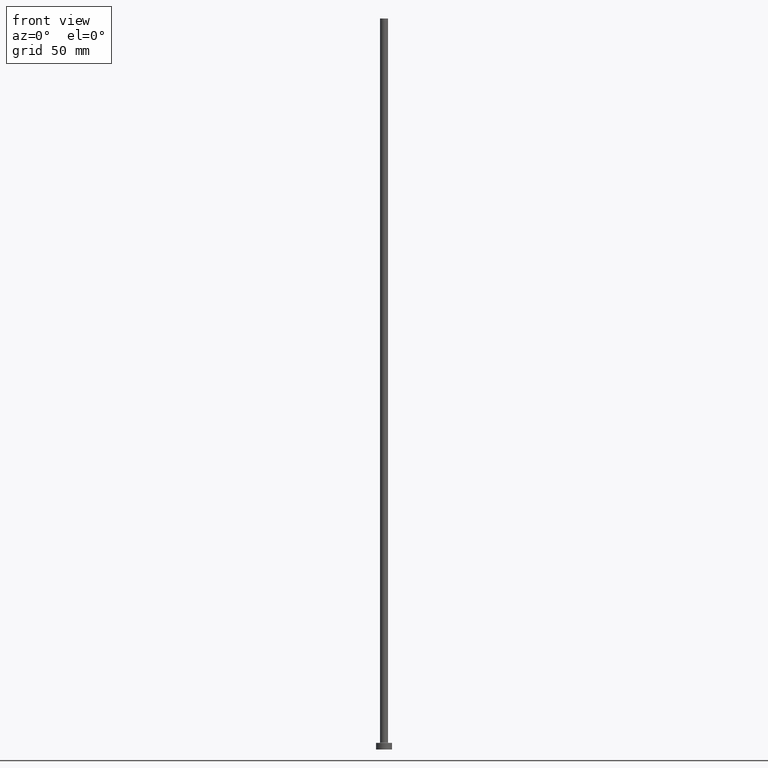
[diagram: clean part render]
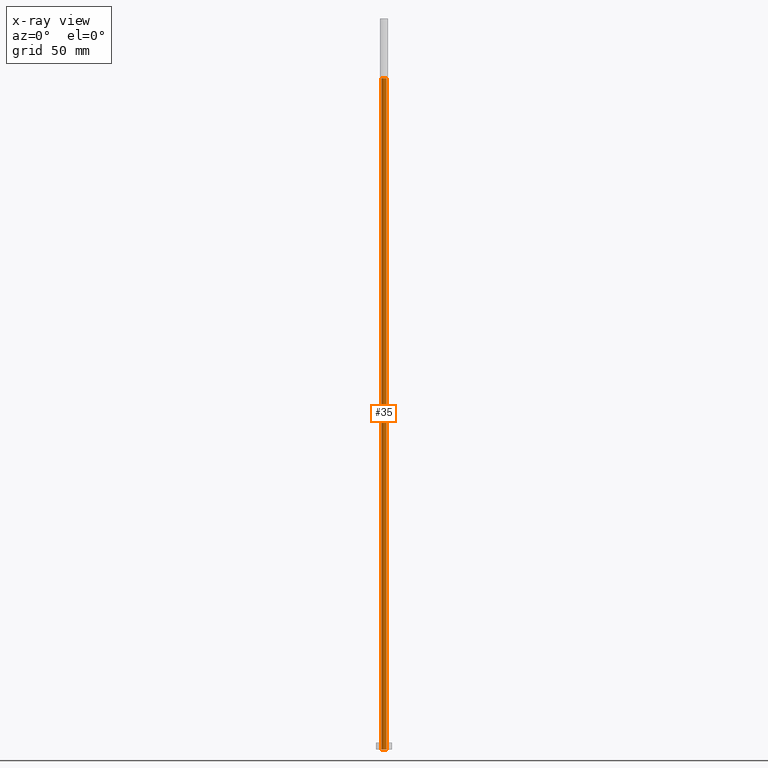
[diagram: x-ray — body ghosted, one internal face saturated and labeled with its STEP entity id]
A machine part, front view, then the same camera in x-ray: the body is ghosted and one INTERNAL B-rep face — a face not visible from any outside direction — is saturated and labeled: STEP entity #35.
In plain terms, the highlighted cylindrical surface (edge-blend (fillet) strip) has radius 1.9 mm, axis along (0, 0, -1).
Its self-contained STEP definition (entity closure, byte-faithful):
#10 = CARTESIAN_POINT ( 'NONE',  ( -1.899999999999999911, 0.000000000000000000, 505.0000000000000000 ) ) ;
#14 = DIRECTION ( 'NONE',  ( 0.000000000000000000, 0.000000000000000000, -1.000000000000000000 ) ) ;
#27 = EDGE_LOOP ( 'NONE', ( #415, #256, #161, #254 ) ) ;
#33 = VERTEX_POINT ( 'NONE', #235 ) ;
#35 = ADVANCED_FACE ( 'NONE', ( #42 ), #175, .F. ) ;
#37 = CARTESIAN_POINT ( 'NONE',  ( 1.899999999999999911, 2.326828918379971365E-16, 0.000000000000000000 ) ) ;
#41 = CARTESIAN_POINT ( 'NONE',  ( 0.000000000000000000, 0.000000000000000000, 505.0000000000000000 ) ) ;
#42 = FACE_OUTER_BOUND ( 'NONE', #27, .T. ) ;
#75 = CIRCLE ( 'NONE', #314, 1.899999999999999911 ) ;
#76 = VERTEX_POINT ( 'NONE', #296 ) ;
#86 = EDGE_CURVE ( 'NONE', #189, #33, #185, .T. ) ;
#97 = VECTOR ( 'NONE', #14, 1000.000000000000000 ) ;
#111 = DIRECTION ( 'NONE',  ( -1.000000000000000000, 0.000000000000000000, 0.000000000000000000 ) ) ;
#116 = DIRECTION ( 'NONE',  ( -0.000000000000000000, -0.000000000000000000, -1.000000000000000000 ) ) ;
#161 = ORIENTED_EDGE ( 'NONE', *, *, #360, .T. ) ;
#175 = CYLINDRICAL_SURFACE ( 'NONE', #192, 1.899999999999999911 ) ;
#185 = CIRCLE ( 'NONE', #228, 1.899999999999999911 ) ;
#189 = VERTEX_POINT ( 'NONE', #10 ) ;
#192 = AXIS2_PLACEMENT_3D ( 'NONE', #460, #308, #111 ) ;
#196 = DIRECTION ( 'NONE',  ( 0.000000000000000000, 0.000000000000000000, 1.000000000000000000 ) ) ;
#199 = DIRECTION ( 'NONE',  ( 0.000000000000000000, 0.000000000000000000, -1.000000000000000000 ) ) ;
#221 = VECTOR ( 'NONE', #199, 1000.000000000000000 ) ;
#228 = AXIS2_PLACEMENT_3D ( 'NONE', #41, #196, #233 ) ;
#233 = DIRECTION ( 'NONE',  ( 1.000000000000000000, 0.000000000000000000, 0.000000000000000000 ) ) ;
#235 = CARTESIAN_POINT ( 'NONE',  ( 1.899999999999999911, 2.326828918379971365E-16, 505.0000000000000000 ) ) ;
#240 = DIRECTION ( 'NONE',  ( 1.000000000000000000, 0.000000000000000000, 0.000000000000000000 ) ) ;
#245 = LINE ( 'NONE', #427, #221 ) ;
#253 = LINE ( 'NONE', #282, #97 ) ;
#254 = ORIENTED_EDGE ( 'NONE', *, *, #352, .F. ) ;
#256 = ORIENTED_EDGE ( 'NONE', *, *, #421, .T. ) ;
#282 = CARTESIAN_POINT ( 'NONE',  ( -1.899999999999999911, 0.000000000000000000, 510.3740115370177932 ) ) ;
#296 = CARTESIAN_POINT ( 'NONE',  ( -1.899999999999999911, 0.000000000000000000, 0.000000000000000000 ) ) ;
#308 = DIRECTION ( 'NONE',  ( 0.000000000000000000, 0.000000000000000000, -1.000000000000000000 ) ) ;
#314 = AXIS2_PLACEMENT_3D ( 'NONE', #422, #116, #240 ) ;
#352 = EDGE_CURVE ( 'NONE', #189, #76, #253, .T. ) ;
#360 = EDGE_CURVE ( 'NONE', #442, #76, #75, .T. ) ;
#415 = ORIENTED_EDGE ( 'NONE', *, *, #86, .T. ) ;
#421 = EDGE_CURVE ( 'NONE', #33, #442, #245, .T. ) ;
#422 = CARTESIAN_POINT ( 'NONE',  ( 0.000000000000000000, 0.000000000000000000, 0.000000000000000000 ) ) ;
#427 = CARTESIAN_POINT ( 'NONE',  ( 1.899999999999999911, 2.326828918379971365E-16, 510.3740115370177932 ) ) ;
#442 = VERTEX_POINT ( 'NONE', #37 ) ;
#460 = CARTESIAN_POINT ( 'NONE',  ( 0.000000000000000000, 0.000000000000000000, 510.3740115370177932 ) ) ;